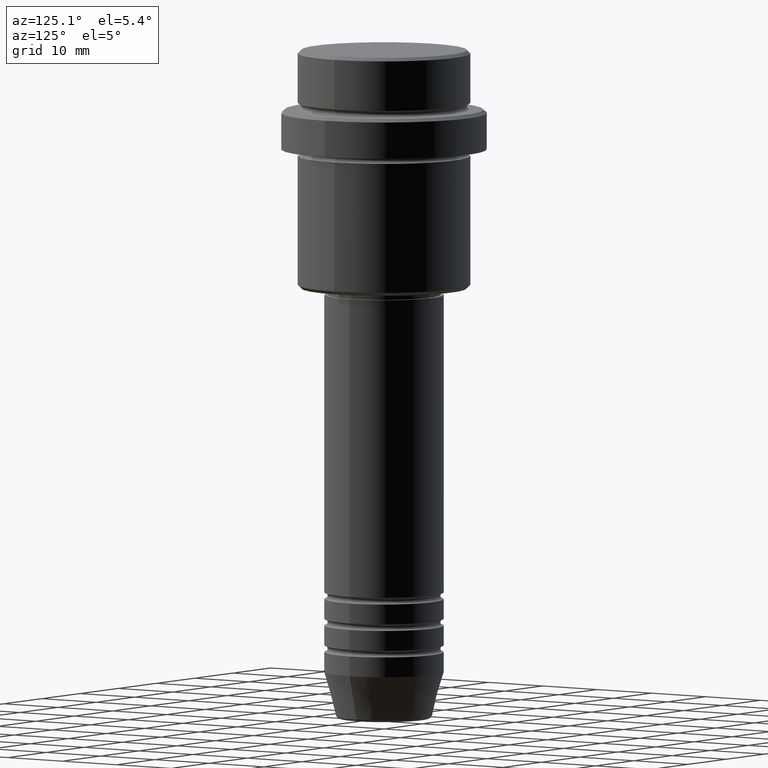
[diagram: clean part render]
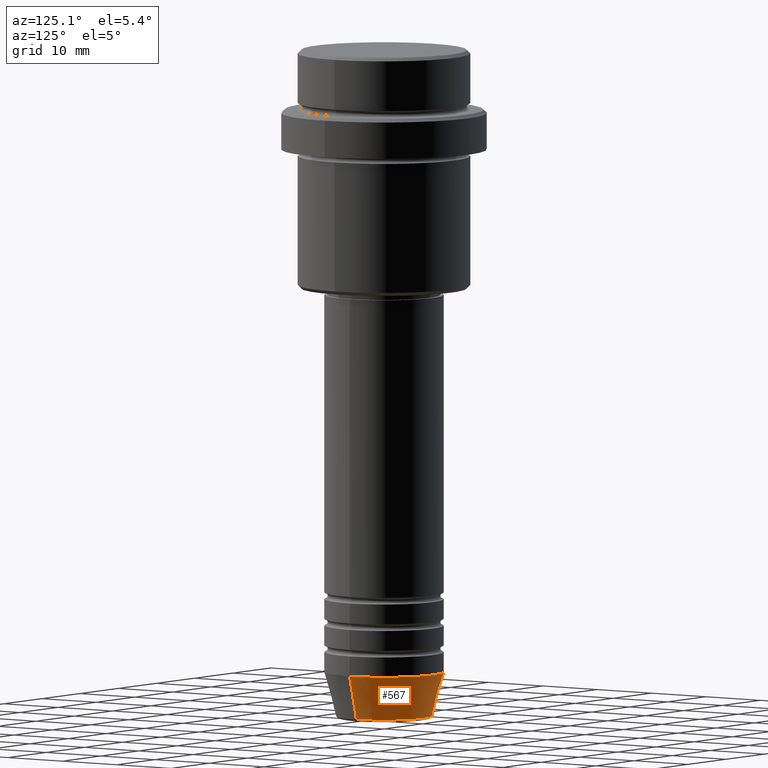
[diagram: same view with one face highlighted and labeled with its STEP entity id]
A machine part, auxiliary view. The second image highlights one B-rep face of the part: STEP entity #567.
In plain terms, the highlighted conical surface has half-angle 15 deg.
Its self-contained STEP definition (entity closure, byte-faithful):
#88 = CARTESIAN_POINT ( 'NONE',  ( 7.223655072137188604, 0.000000000000000000, -100.6294095225512706 ) ) ;
#141 = DIRECTION ( 'NONE',  ( -0.000000000000000000, -0.000000000000000000, 1.000000000000000000 ) ) ;
#192 = CARTESIAN_POINT ( 'NONE',  ( 9.000000000000000000, 0.000000000000000000, -94.00000000000000000 ) ) ;
#248 = EDGE_CURVE ( 'NONE', #1135, #1352, #619, .T. ) ;
#252 = CARTESIAN_POINT ( 'NONE',  ( -9.000000000000000000, 1.102182119232617714E-15, -94.00000000000000000 ) ) ;
#266 = ORIENTED_EDGE ( 'NONE', *, *, #686, .T. ) ;
#365 = DIRECTION ( 'NONE',  ( -0.000000000000000000, -0.000000000000000000, 1.000000000000000000 ) ) ;
#394 = EDGE_CURVE ( 'NONE', #1088, #1352, #487, .T. ) ;
#429 = ORIENTED_EDGE ( 'NONE', *, *, #248, .T. ) ;
#435 = ORIENTED_EDGE ( 'NONE', *, *, #1303, .F. ) ;
#439 = DIRECTION ( 'NONE',  ( 0.2588190451025213501, 0.000000000000000000, 0.9659258262890680902 ) ) ;
#487 = CIRCLE ( 'NONE', #779, 9.000000000000000000 ) ;
#509 = VERTEX_POINT ( 'NONE', #88 ) ;
#567 = ADVANCED_FACE ( 'NONE', ( #1015 ), #1059, .T. ) ;
#577 = DIRECTION ( 'NONE',  ( 1.000000000000000000, 0.000000000000000000, 0.000000000000000000 ) ) ;
#598 = AXIS2_PLACEMENT_3D ( 'NONE', #907, #365, #796 ) ;
#619 = LINE ( 'NONE', #1055, #669 ) ;
#648 = CARTESIAN_POINT ( 'NONE',  ( -7.223655072137189492, 9.934123627281765110E-16, -100.6294095225512706 ) ) ;
#669 = VECTOR ( 'NONE', #1174, 1000.000000000000000 ) ;
#676 = VECTOR ( 'NONE', #439, 1000.000000000000000 ) ;
#686 = EDGE_CURVE ( 'NONE', #509, #1135, #1102, .T. ) ;
#779 = AXIS2_PLACEMENT_3D ( 'NONE', #1076, #846, #1194 ) ;
#796 = DIRECTION ( 'NONE',  ( 1.000000000000000000, 0.000000000000000000, 0.000000000000000000 ) ) ;
#797 = EDGE_LOOP ( 'NONE', ( #266, #429, #1400, #435 ) ) ;
#846 = DIRECTION ( 'NONE',  ( -0.000000000000000000, -0.000000000000000000, 1.000000000000000000 ) ) ;
#907 = CARTESIAN_POINT ( 'NONE',  ( 0.000000000000000000, 0.000000000000000000, -100.6294095225512706 ) ) ;
#982 = LINE ( 'NONE', #1412, #676 ) ;
#1015 = FACE_OUTER_BOUND ( 'NONE', #797, .T. ) ;
#1032 = AXIS2_PLACEMENT_3D ( 'NONE', #1129, #141, #577 ) ;
#1055 = CARTESIAN_POINT ( 'NONE',  ( -9.000000000000000000, 1.102182119232617714E-15, -94.00000000000000000 ) ) ;
#1059 = CONICAL_SURFACE ( 'NONE', #1032, 9.000000000000000000, 0.2617993877991500740 ) ;
#1076 = CARTESIAN_POINT ( 'NONE',  ( 0.000000000000000000, 0.000000000000000000, -94.00000000000000000 ) ) ;
#1088 = VERTEX_POINT ( 'NONE', #192 ) ;
#1102 = CIRCLE ( 'NONE', #598, 7.223655072137188604 ) ;
#1129 = CARTESIAN_POINT ( 'NONE',  ( 0.000000000000000000, 0.000000000000000000, -94.00000000000000000 ) ) ;
#1135 = VERTEX_POINT ( 'NONE', #648 ) ;
#1174 = DIRECTION ( 'NONE',  ( -0.2588190451025213501, 3.169619151431772337E-17, 0.9659258262890680902 ) ) ;
#1194 = DIRECTION ( 'NONE',  ( 1.000000000000000000, 0.000000000000000000, 0.000000000000000000 ) ) ;
#1303 = EDGE_CURVE ( 'NONE', #509, #1088, #982, .T. ) ;
#1352 = VERTEX_POINT ( 'NONE', #252 ) ;
#1400 = ORIENTED_EDGE ( 'NONE', *, *, #394, .F. ) ;
#1412 = CARTESIAN_POINT ( 'NONE',  ( 9.000000000000000000, 0.000000000000000000, -94.00000000000000000 ) ) ;